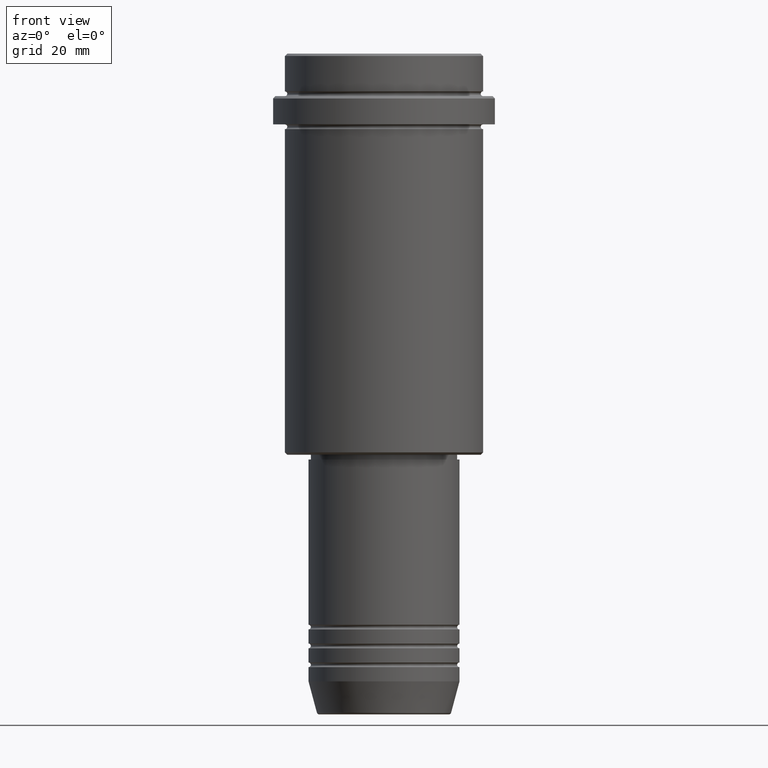
[diagram: clean part render]
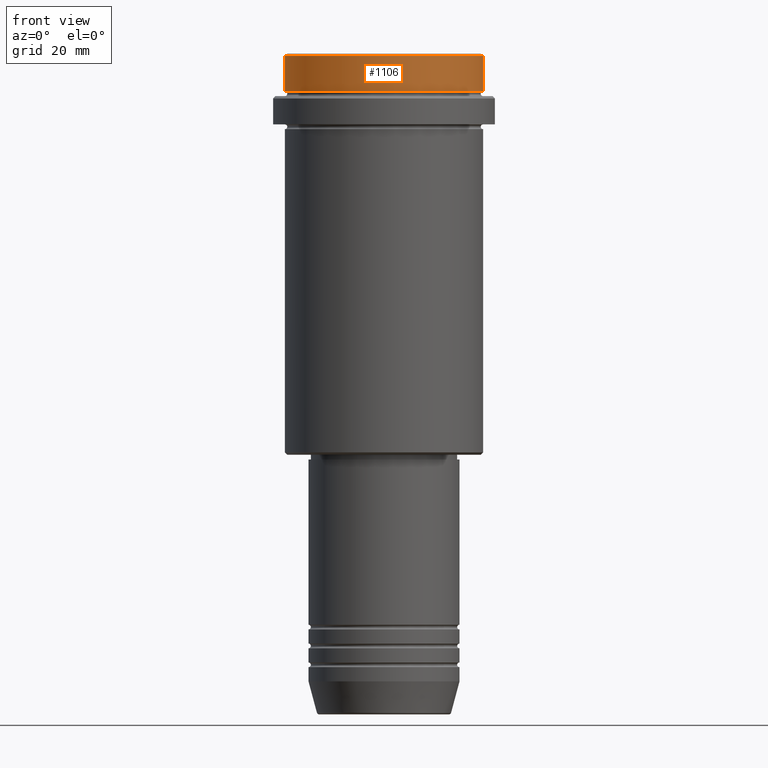
[diagram: same view with one face highlighted and labeled with its STEP entity id]
A machine part, front view. The second image highlights one B-rep face of the part: STEP entity #1106.
In plain terms, the highlighted cylindrical surface (partial cylindrical patch) has radius 21 mm, axis along (-0, -0, 1).
Its self-contained STEP definition (entity closure, byte-faithful):
#23 = CYLINDRICAL_SURFACE ( 'NONE', #185, 21.00000000000000000 ) ;
#25 = VERTEX_POINT ( 'NONE', #837 ) ;
#70 = VECTOR ( 'NONE', #589, 1000.000000000000000 ) ;
#81 = VERTEX_POINT ( 'NONE', #1367 ) ;
#101 = DIRECTION ( 'NONE',  ( 0.000000000000000000, 0.000000000000000000, -1.000000000000000000 ) ) ;
#142 = VERTEX_POINT ( 'NONE', #1163 ) ;
#185 = AXIS2_PLACEMENT_3D ( 'NONE', #757, #764, #434 ) ;
#240 = AXIS2_PLACEMENT_3D ( 'NONE', #862, #101, #1305 ) ;
#246 = VECTOR ( 'NONE', #508, 1000.000000000000000 ) ;
#269 = AXIS2_PLACEMENT_3D ( 'NONE', #866, #1105, #335 ) ;
#279 = EDGE_CURVE ( 'NONE', #81, #25, #739, .T. ) ;
#324 = EDGE_CURVE ( 'NONE', #1214, #25, #574, .T. ) ;
#335 = DIRECTION ( 'NONE',  ( 1.000000000000000000, 0.000000000000000000, 0.000000000000000000 ) ) ;
#434 = DIRECTION ( 'NONE',  ( 1.000000000000000000, 0.000000000000000000, 0.000000000000000000 ) ) ;
#477 = CARTESIAN_POINT ( 'NONE',  ( -21.00000000000000000, 2.571758278209441661E-15, 0.000000000000000000 ) ) ;
#508 = DIRECTION ( 'NONE',  ( -0.000000000000000000, -0.000000000000000000, 1.000000000000000000 ) ) ;
#574 = LINE ( 'NONE', #477, #70 ) ;
#589 = DIRECTION ( 'NONE',  ( -0.000000000000000000, -0.000000000000000000, 1.000000000000000000 ) ) ;
#597 = ORIENTED_EDGE ( 'NONE', *, *, #740, .T. ) ;
#662 = ORIENTED_EDGE ( 'NONE', *, *, #1012, .T. ) ;
#739 = CIRCLE ( 'NONE', #240, 21.00000000000000000 ) ;
#740 = EDGE_CURVE ( 'NONE', #1214, #142, #855, .T. ) ;
#757 = CARTESIAN_POINT ( 'NONE',  ( 0.000000000000000000, 0.000000000000000000, 0.000000000000000000 ) ) ;
#764 = DIRECTION ( 'NONE',  ( -0.000000000000000000, -0.000000000000000000, 1.000000000000000000 ) ) ;
#837 = CARTESIAN_POINT ( 'NONE',  ( -21.00000000000000000, 2.571758278209441661E-15, -0.5000000000000247580 ) ) ;
#855 = CIRCLE ( 'NONE', #269, 21.00000000000000000 ) ;
#860 = EDGE_LOOP ( 'NONE', ( #1102, #597, #662, #1201 ) ) ;
#862 = CARTESIAN_POINT ( 'NONE',  ( 0.000000000000000000, 0.000000000000000000, -0.5000000000000247580 ) ) ;
#866 = CARTESIAN_POINT ( 'NONE',  ( 0.000000000000000000, 0.000000000000000000, -7.999999999999998224 ) ) ;
#1012 = EDGE_CURVE ( 'NONE', #142, #81, #1166, .T. ) ;
#1050 = CARTESIAN_POINT ( 'NONE',  ( 21.00000000000000000, 0.000000000000000000, 0.000000000000000000 ) ) ;
#1102 = ORIENTED_EDGE ( 'NONE', *, *, #324, .F. ) ;
#1103 = FACE_OUTER_BOUND ( 'NONE', #860, .T. ) ;
#1105 = DIRECTION ( 'NONE',  ( -0.000000000000000000, -0.000000000000000000, 1.000000000000000000 ) ) ;
#1106 = ADVANCED_FACE ( 'NONE', ( #1103 ), #23, .T. ) ;
#1163 = CARTESIAN_POINT ( 'NONE',  ( 21.00000000000000000, 0.000000000000000000, -7.999999999999998224 ) ) ;
#1166 = LINE ( 'NONE', #1050, #246 ) ;
#1201 = ORIENTED_EDGE ( 'NONE', *, *, #279, .T. ) ;
#1214 = VERTEX_POINT ( 'NONE', #1232 ) ;
#1232 = CARTESIAN_POINT ( 'NONE',  ( -21.00000000000000000, 2.571758278209441661E-15, -7.999999999999998224 ) ) ;
#1305 = DIRECTION ( 'NONE',  ( 1.000000000000000000, 0.000000000000000000, 0.000000000000000000 ) ) ;
#1367 = CARTESIAN_POINT ( 'NONE',  ( 21.00000000000000000, 0.000000000000000000, -0.5000000000000247580 ) ) ;